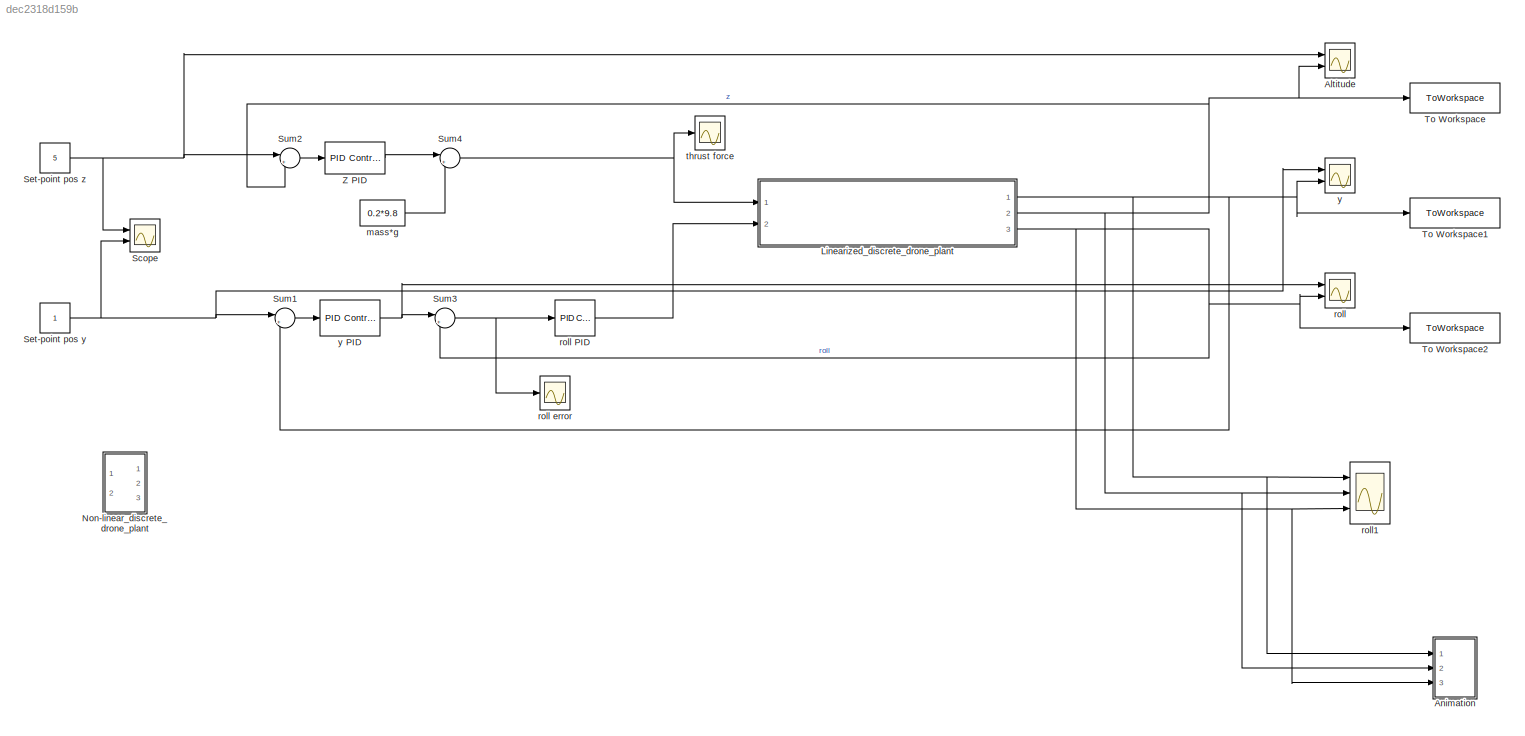
MODEL slx_dec2318d159b
KIND model
CONFIG AbsTol = auto
CONFIG EnableMultiTasking = off
CONFIG FixedStep = auto
CONFIG MaxStep = 0.01
CONFIG MinStep = auto
CONFIG RelTol = 1e-3
CONFIG SampleTimeConstraint = Unconstrained
CONFIG Solver = VariableStepAuto
CONFIG SolverName = VariableStepAuto
CONFIG StartTime = 0.0
CONFIG StopTime = 100.0
BLOCK [Scope] Altitude
  Floating = off
  NumInputPorts = 2
  Ports = [2]
  ScopeSpecificationString = Simulink.scopes.TimeScopeBlockCfg('CurrentConfiguration', extmgr.ConfigurationSet(extmgr.Configuration('Core','General UI',true),extmgr.Configuration('Core','Source UI',true),extmgr.Configuration('Sources','WiredSimulink',true,'DataLoggingVariableName','ScopeData3'),extmgr.Configuration('Visuals','Time Domain',true,'SerializedDisplays',{struct('MinYLimReal','-0.63049','MaxYLimReal','5.67443','YLab...<+1439ch>
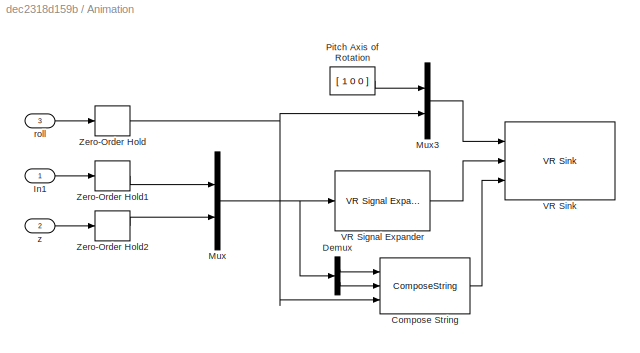
BLOCK [SubSystem] Animation
  Commented = on
  Ports = [3]
  RequestExecContextInheritance = off
BLOCK [ComposeString] Animation/Compose String
  Format = 'Xe      : %7.2f m\nZe      : %7.2f m\nAttitude: %7.2f rad'
  Ports = [3, 1]
BLOCK [Demux] Animation/Demux
  Outputs = 2
  Ports = [1, 2]
BLOCK [Inport] Animation/In1
BLOCK [Mux] Animation/Mux
  DisplayOption = bar
  Inputs = 2
  Ports = [2, 1]
BLOCK [Mux] Animation/Mux3
  DisplayOption = bar
  Inputs = 2
  Ports = [2, 1]
BLOCK [Constant] Animation/Pitch Axis of Rotation
  Value = [ 1 0 0 ]
BLOCK [Reference] Animation/VR Signal Expander  REF=vrlib/VR Signal Expander
  Ports = [1, 1]
  SourceBlock = vrlib/VR Signal Expander
  SourceProductBaseCode = SL
  SourceType = VR Signal Expander
BLOCK [Reference] Animation/VR Sink  REF=vrlib/VR Sink
  InstantiateOnLoad = on
  Ports = [3]
  SourceBlock = vrlib/VR Sink
  SourceProductBaseCode = SL
  SourceType = Virtual Reality Sink
BLOCK [ZeroOrderHold] Animation/Zero-Order Hold
  SampleTime = -1
BLOCK [ZeroOrderHold] Animation/Zero-Order Hold1
  SampleTime = -1
BLOCK [ZeroOrderHold] Animation/Zero-Order Hold2
  SampleTime = -1
BLOCK [Inport] Animation/roll
  Port = 3
BLOCK [Inport] Animation/z
  Port = 2
BLOCK [SubSystem] Linearized_discrete_drone_plant
  Ports = [2, 3]
  ReferencedSubsystem = Linearized_discrete_drone_plant
  RequestExecContextInheritance = off
BLOCK [SubSystem] Non-linear_discrete_drone_plant
  Commented = on
  Ports = [2, 3]
  ReferencedSubsystem = Non_linear_discrete_drone_plant
  RequestExecContextInheritance = off
BLOCK [Scope] Scope
  Floating = off
  NumInputPorts = 2
  Ports = [2]
  ScopeSpecificationString = Simulink.scopes.TimeScopeBlockCfg('CurrentConfiguration', extmgr.ConfigurationSet(extmgr.Configuration('Core','General UI',true),extmgr.Configuration('Core','Source UI',true),extmgr.Configuration('Sources','WiredSimulink',true),extmgr.Configuration('Visuals','Time Domain',true,'SerializedDisplays',{struct('MinYLimReal','9.00000','MaxYLimReal','11.00000','YLabelReal','','MinYLimMag','9.00000','MaxY...<+1426ch>
BLOCK [Constant] Set-point pos y
BLOCK [Constant] Set-point pos z
  Value = 5
BLOCK [Sum] Sum1
  Inputs = |+-
  Ports = [2, 1]
BLOCK [Sum] Sum2
  Inputs = |+-
  Ports = [2, 1]
BLOCK [Sum] Sum3
  Inputs = |+-
  Ports = [2, 1]
BLOCK [Sum] Sum4
  Inputs = |+-
  Ports = [2, 1]
BLOCK [ToWorkspace] To Workspace
  FixptAsFi = on
  MaxDataPoints = inf
  Ports = [1]
  SampleTime = -1
  SaveFormat = Timeseries
  VariableName = zout
BLOCK [ToWorkspace] To Workspace1
  FixptAsFi = on
  MaxDataPoints = inf
  Ports = [1]
  SampleTime = -1
  SaveFormat = Timeseries
  VariableName = yout
BLOCK [ToWorkspace] To Workspace2
  FixptAsFi = on
  MaxDataPoints = inf
  Ports = [1]
  SampleTime = -1
  SaveFormat = Timeseries
  VariableName = rollout
BLOCK [Reference] Z PID  REF=simulink/Continuous/PID Controller
  Ports = [1, 1]
  SourceBlock = simulink/Continuous/PID Controller
  SourceProductBaseCode = SL
  SourceType = PID 1dof
BLOCK [Constant] mass*g
  Value = 0.2*9.8
BLOCK [Scope] roll
  Floating = off
  NumInputPorts = 2
  Ports = [2]
  ScopeSpecificationString = Simulink.scopes.TimeScopeBlockCfg('CurrentConfiguration', extmgr.ConfigurationSet(extmgr.Configuration('Core','General UI',true),extmgr.Configuration('Core','Source UI',true),extmgr.Configuration('Sources','WiredSimulink',true,'DataLoggingVariableName','ScopeData5'),extmgr.Configuration('Visuals','Time Domain',true,'SerializedDisplays',{struct('MinYLimReal','-0.10495','MaxYLimReal','0.10029','YLab...<+1432ch>
BLOCK [Reference] roll PID  REF=simulink/Continuous/PID Controller
  Ports = [1, 1]
  SourceBlock = simulink/Continuous/PID Controller
  SourceProductBaseCode = SL
  SourceType = PID 1dof
BLOCK [Scope] roll error
  Floating = off
  NumInputPorts = 1
  Ports = [1]
  ScopeSpecificationString = Simulink.scopes.TimeScopeBlockCfg('CurrentConfiguration', extmgr.ConfigurationSet(extmgr.Configuration('Core','General UI',true),extmgr.Configuration('Core','Source UI',true),extmgr.Configuration('Sources','WiredSimulink',true,'DataLoggingVariableName','ScopeData1'),extmgr.Configuration('Visuals','Time Domain',true,'SerializedDisplays',{struct('MinYLimReal','-0.13907','MaxYLimReal','0.12681','YLab...<+1467ch>
BLOCK [Scope] roll1
  Floating = off
  NumInputPorts = 3
  Ports = [3]
  ScopeSpecificationString = Simulink.scopes.TimeScopeBlockCfg('CurrentConfiguration', extmgr.ConfigurationSet(extmgr.Configuration('Core','General UI',true),extmgr.Configuration('Core','Source UI',true),extmgr.Configuration('Sources','WiredSimulink',true,'DataLoggingVariableName','ScopeData1'),extmgr.Configuration('Visuals','Time Domain',true,'SerializedDisplays',{struct('MinYLimReal','-0.12595','MaxYLimReal','1.13351','YLab...<+2838ch>
BLOCK [Scope] thrust force
  Floating = off
  NumInputPorts = 1
  Ports = [1]
  ScopeSpecificationString = Simulink.scopes.TimeScopeBlockCfg('CurrentConfiguration', extmgr.ConfigurationSet(extmgr.Configuration('Core','General UI',true),extmgr.Configuration('Core','Source UI',true),extmgr.Configuration('Sources','WiredSimulink',true,'DataLoggingVariableName','ScopeData2'),extmgr.Configuration('Visuals','Time Domain',true),extmgr.Configuration('Tools','Plot Navigation',true),extmgr.Configuration('Tools',...<+58ch>
BLOCK [Scope] y
  Floating = off
  NumInputPorts = 2
  Ports = [2]
  ScopeSpecificationString = Simulink.scopes.TimeScopeBlockCfg('CurrentConfiguration', extmgr.ConfigurationSet(extmgr.Configuration('Core','General UI',true),extmgr.Configuration('Core','Source UI',true),extmgr.Configuration('Sources','WiredSimulink',true,'DataLoggingVariableName','ScopeData4'),extmgr.Configuration('Visuals','Time Domain',true,'SerializedDisplays',{struct('MinYLimReal','-0.125','MaxYLimReal','1.125','YLabelRe...<+1504ch>
BLOCK [Reference] y PID  REF=simulink/Continuous/PID Controller
  Ports = [1, 1]
  SourceBlock = simulink/Continuous/PID Controller
  SourceProductBaseCode = SL
  SourceType = PID 1dof
LINE Animation/Compose String:1 -> Animation/VR Sink:3
LINE Animation/Demux:1 -> Animation/Compose String:1
LINE Animation/Demux:2 -> Animation/Compose String:2
LINE Animation/In1:1 -> Animation/Zero-Order Hold1:1
LINE Animation/Mux3:1 -> Animation/VR Sink:1
NET Animation/Mux:1 -> Animation/Demux:1, Animation/VR Signal Expander:1
LINE Animation/Pitch Axis of Rotation:1 -> Animation/Mux3:1
LINE Animation/VR Signal Expander:1 -> Animation/VR Sink:2
LINE Animation/Zero-Order Hold1:1 -> Animation/Mux:1
LINE Animation/Zero-Order Hold2:1 -> Animation/Mux:2
NET Animation/Zero-Order Hold:1 -> Animation/Compose String:3, Animation/Mux3:2
LINE Animation/roll:1 -> Animation/Zero-Order Hold:1
LINE Animation/z:1 -> Animation/Zero-Order Hold2:1
NET Linearized_discrete_drone_plant:1 -> Animation:1, Sum1:2, To Workspace1:1, roll1:1, y:2
NET Linearized_discrete_drone_plant:2 -> Altitude:2, Animation:2, Sum2:2, To Workspace:1, roll1:2
NET Linearized_discrete_drone_plant:3 -> Animation:3, Sum3:2, To Workspace2:1, roll1:3, roll:2
NET Set-point pos y:1 -> Scope:2, Sum1:1, y:1
NET Set-point pos z:1 -> Altitude:1, Scope:1, Sum2:1
LINE Sum1:1 -> y PID:1
LINE Sum2:1 -> Z PID:1
NET Sum3:1 -> roll PID:1, roll error:1
NET Sum4:1 -> Linearized_discrete_drone_plant:1, thrust force:1
LINE Z PID:1 -> Sum4:1
LINE mass*g:1 -> Sum4:2
LINE roll PID:1 -> Linearized_discrete_drone_plant:2
NET y PID:1 -> Sum3:1, roll:1
note: NET lines group one-source signal fan-out (src -> all destinations, sorted); 1:1 wires keep LINE
